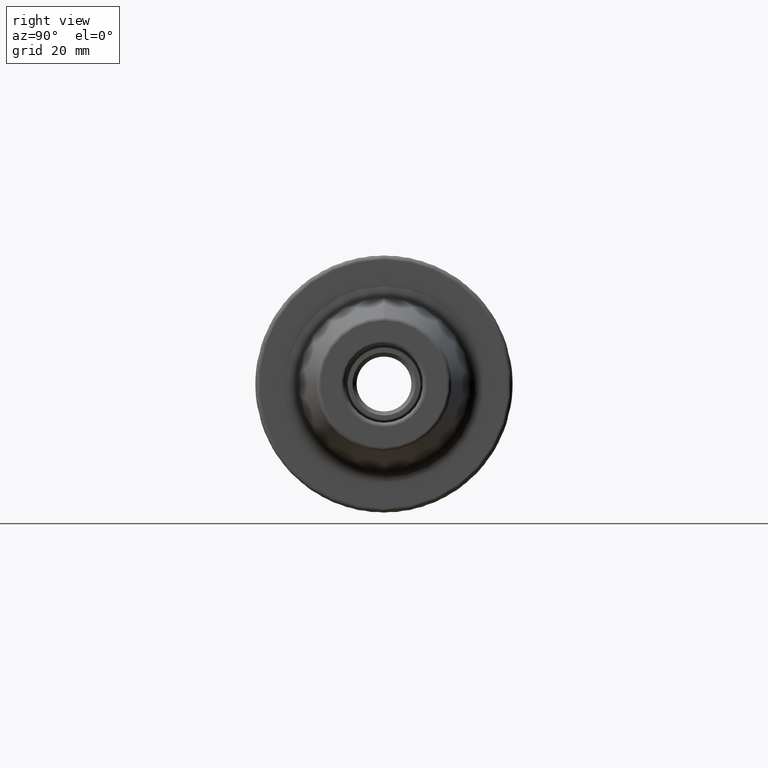
[diagram: clean part render]
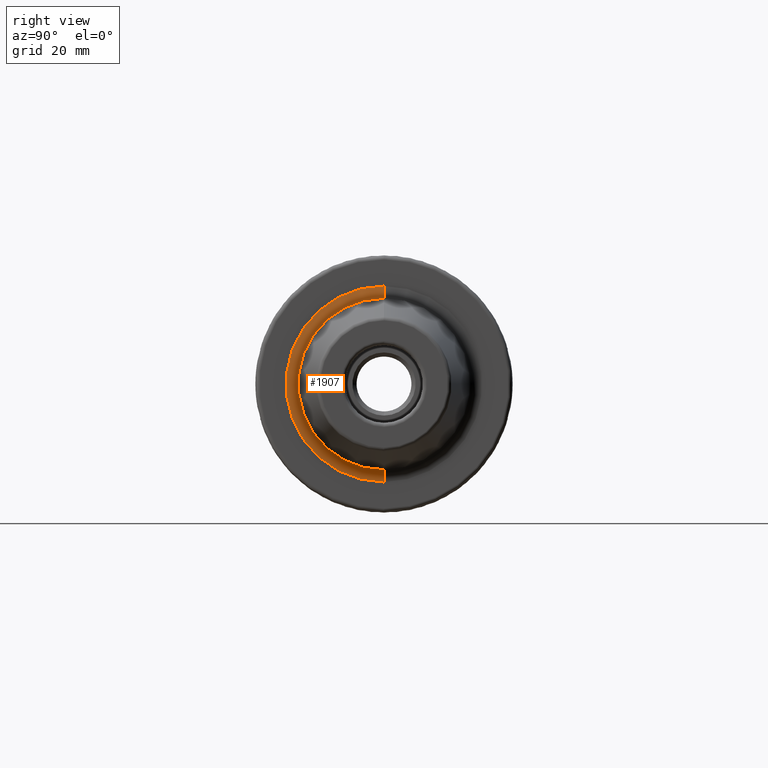
[diagram: same view with one face highlighted and labeled with its STEP entity id]
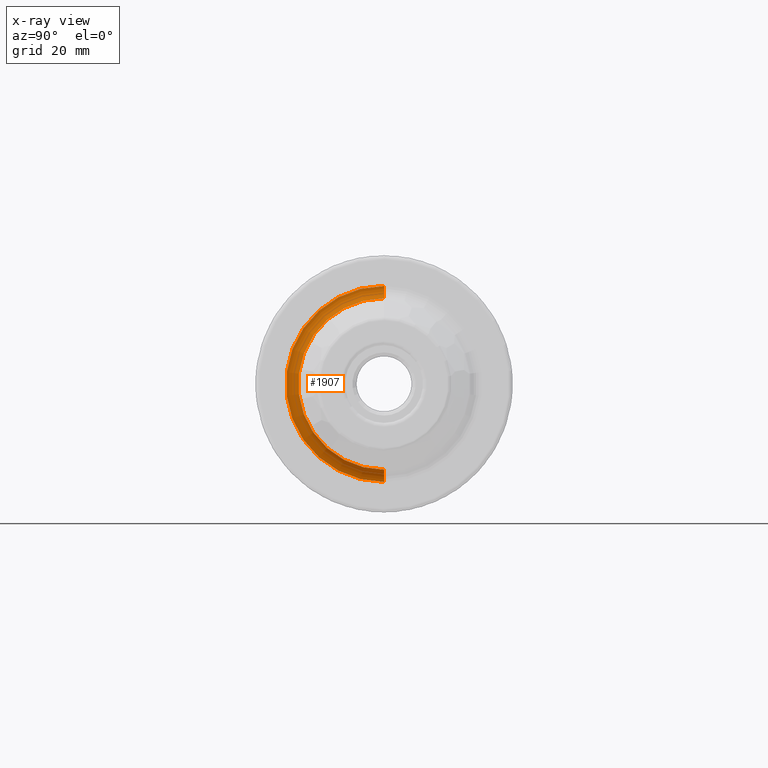
[diagram: x-ray of the same camera — body ghosted, the highlighted face saturated]
A machine part, right view. The second image highlights one B-rep face of the part: STEP entity #1907.
The next image is the same camera in x-ray: the body ghosted, the highlighted face saturated — about 0% of this face is hidden behind the body in this view.
In plain terms, the highlighted toroidal blend (fillet) surface has major radius 24 mm and minor (blend) radius 3 mm.
Its self-contained STEP definition (entity closure, byte-faithful):
#440=CARTESIAN_POINT('',(3.E1,0.E0,2.4E1));
#441=DIRECTION('',(0.E0,1.E0,0.E0));
#442=DIRECTION('',(0.E0,0.E0,-1.E0));
#443=AXIS2_PLACEMENT_3D('',#440,#441,#442);
#445=CARTESIAN_POINT('',(3.E1,0.E0,0.E0));
#446=DIRECTION('',(-1.E0,0.E0,0.E0));
#447=DIRECTION('',(0.E0,0.E0,-1.E0));
#448=AXIS2_PLACEMENT_3D('',#445,#446,#447);
#450=CARTESIAN_POINT('',(3.E1,0.E0,-2.4E1));
#451=DIRECTION('',(0.E0,-1.E0,0.E0));
#452=DIRECTION('',(0.E0,0.E0,1.E0));
#453=AXIS2_PLACEMENT_3D('',#450,#451,#452);
#470=CARTESIAN_POINT('',(2.7E1,0.E0,0.E0));
#471=DIRECTION('',(1.E0,0.E0,0.E0));
#472=DIRECTION('',(0.E0,0.E0,1.E0));
#473=AXIS2_PLACEMENT_3D('',#470,#471,#472);
#1189=CARTESIAN_POINT('',(3.E1,0.E0,-2.1E1));
#1190=VERTEX_POINT('',#1189);
#1215=CARTESIAN_POINT('',(3.E1,0.E0,2.1E1));
#1216=VERTEX_POINT('',#1215);
#1221=CARTESIAN_POINT('',(2.7E1,0.E0,-2.4E1));
#1222=CARTESIAN_POINT('',(2.7E1,0.E0,2.4E1));
#1223=VERTEX_POINT('',#1221);
#1224=VERTEX_POINT('',#1222);
#1893=CARTESIAN_POINT('',(3.E1,0.E0,0.E0));
#1894=DIRECTION('',(1.E0,0.E0,0.E0));
#1895=DIRECTION('',(0.E0,0.E0,1.E0));
#1896=AXIS2_PLACEMENT_3D('',#1893,#1894,#1895);
#1897=TOROIDAL_SURFACE('',#1896,2.4E1,3.E0);
#1899=ORIENTED_EDGE('',*,*,#1898,.F.);
#1901=ORIENTED_EDGE('',*,*,#1900,.F.);
#1902=ORIENTED_EDGE('',*,*,#1886,.F.);
#1904=ORIENTED_EDGE('',*,*,#1903,.T.);
#1905=EDGE_LOOP('',(#1899,#1901,#1902,#1904));
#1906=FACE_OUTER_BOUND('',#1905,.F.);
#1907=ADVANCED_FACE('',(#1906),#1897,.F.);
#444=CIRCLE('',#443,3.E0);
#449=CIRCLE('',#448,2.1E1);
#454=CIRCLE('',#453,3.E0);
#474=CIRCLE('',#473,2.4E1);
#1886=EDGE_CURVE('',#1190,#1216,#449,.T.);
#1898=EDGE_CURVE('',#1224,#1223,#474,.T.);
#1900=EDGE_CURVE('',#1216,#1224,#444,.T.);
#1903=EDGE_CURVE('',#1190,#1223,#454,.T.);